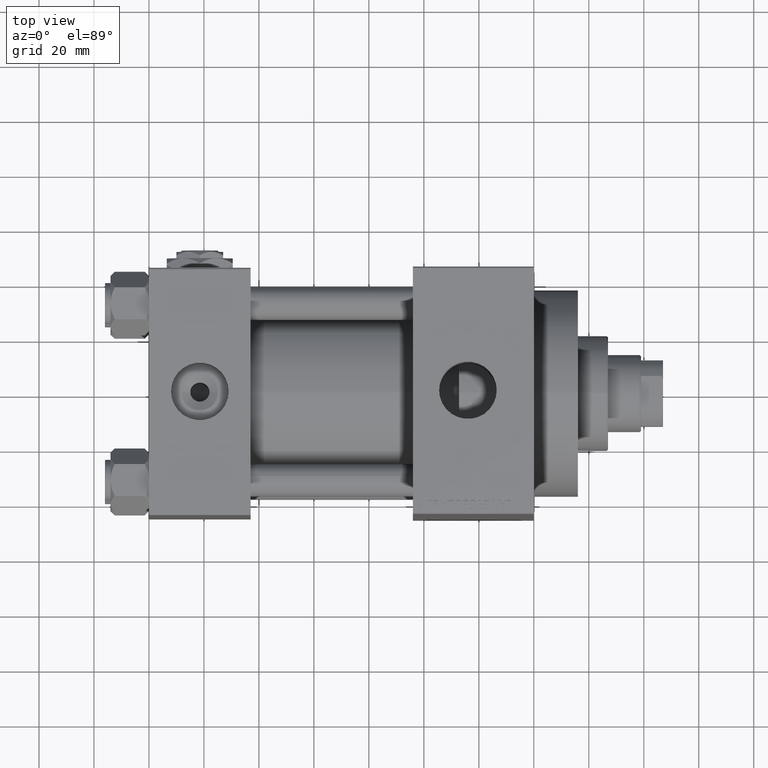
[diagram: clean part render]
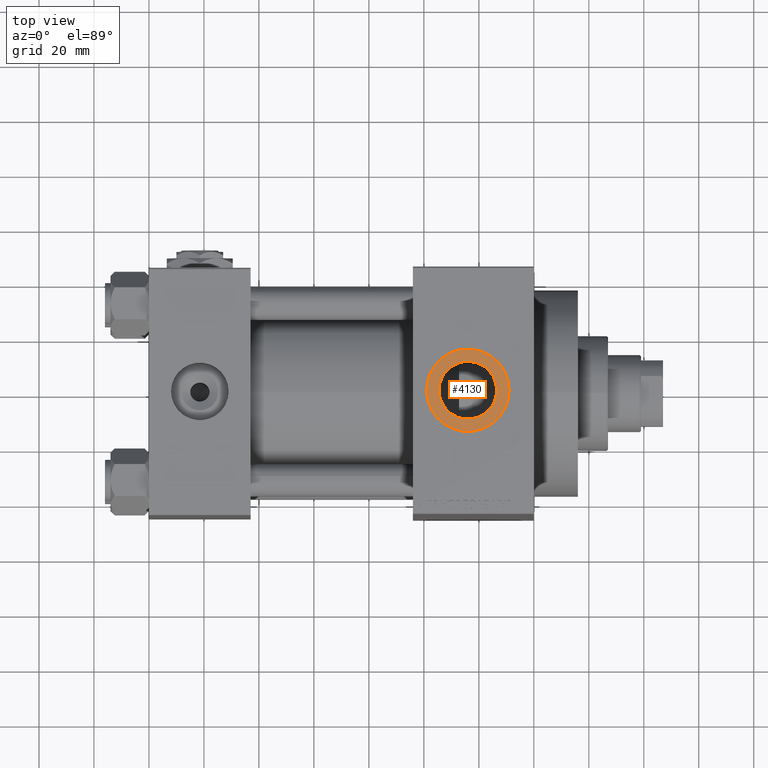
[diagram: same view with one face highlighted and labeled with its STEP entity id]
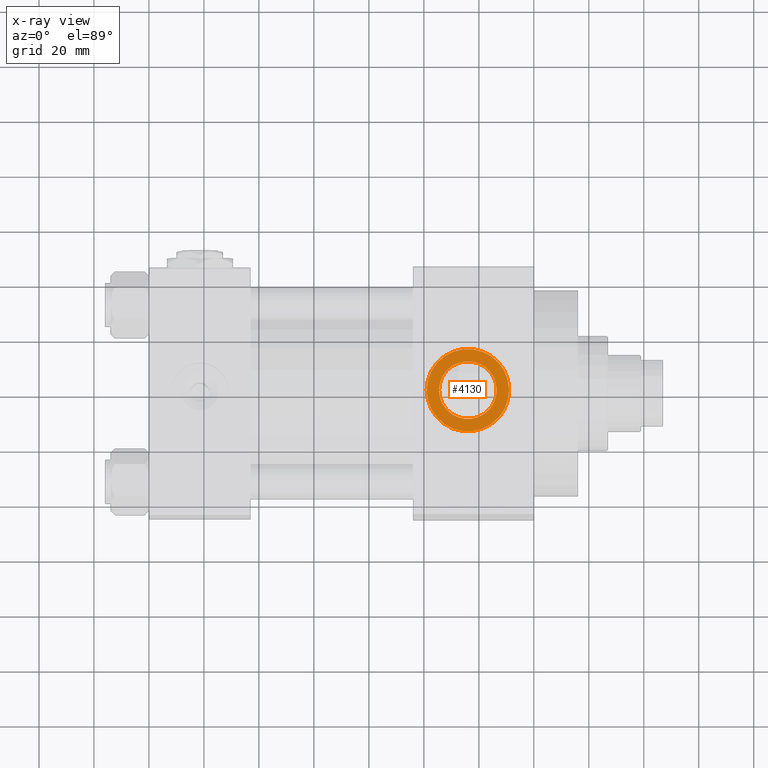
[diagram: x-ray of the same camera — body ghosted, the highlighted face saturated]
A machine part, top view. The second image highlights one B-rep face of the part: STEP entity #4130.
The next image is the same camera in x-ray: the body ghosted, the highlighted face saturated — about 0% of this face is hidden behind the body in this view.
In plain terms, the highlighted planar face has unit normal (0, 0, 1).
Its self-contained STEP definition (entity closure, byte-faithful):
#2776 = AXIS2_PLACEMENT_3D ( 'NONE', #47693, #6136, #10334 ) ;
#3206 = CARTESIAN_POINT ( 'NONE',  ( 116.0000000000000000, -1.094803260394251466E-14, 70.79999999999996874 ) ) ;
#4130 = ADVANCED_FACE ( 'NONE', ( #30452, #8173 ), #49000, .T. ) ;
#5685 = VERTEX_POINT ( 'NONE', #46159 ) ;
#6136 = DIRECTION ( 'NONE',  ( 0.000000000000000000, 0.000000000000000000, 1.000000000000000000 ) ) ;
#6540 = EDGE_LOOP ( 'NONE', ( #9689, #9981 ) ) ;
#6708 = DIRECTION ( 'NONE',  ( 1.000000000000000000, 0.000000000000000000, 0.000000000000000000 ) ) ;
#8173 = FACE_OUTER_BOUND ( 'NONE', #6540, .T. ) ;
#8675 = EDGE_CURVE ( 'NONE', #41296, #15831, #32984, .T. ) ;
#9689 = ORIENTED_EDGE ( 'NONE', *, *, #48939, .T. ) ;
#9981 = ORIENTED_EDGE ( 'NONE', *, *, #46489, .T. ) ;
#10334 = DIRECTION ( 'NONE',  ( 1.000000000000000000, 0.000000000000000000, 0.000000000000000000 ) ) ;
#13549 = VERTEX_POINT ( 'NONE', #33573 ) ;
#13628 = CARTESIAN_POINT ( 'NONE',  ( 126.4800000000000040, -9.664602758436087591E-15, 70.79999999999996874 ) ) ;
#14598 = AXIS2_PLACEMENT_3D ( 'NONE', #3206, #18318, #40590 ) ;
#15429 = AXIS2_PLACEMENT_3D ( 'NONE', #34900, #45536, #22781 ) ;
#15831 = VERTEX_POINT ( 'NONE', #13628 ) ;
#18318 = DIRECTION ( 'NONE',  ( -0.000000000000000000, -0.000000000000000000, -1.000000000000000000 ) ) ;
#18717 = CARTESIAN_POINT ( 'NONE',  ( 105.5199999999999960, -1.094803260394251466E-14, 70.79999999999996874 ) ) ;
#18967 = DIRECTION ( 'NONE',  ( 1.000000000000000000, 0.000000000000000000, 0.000000000000000000 ) ) ;
#22781 = DIRECTION ( 'NONE',  ( 1.000000000000000000, 0.000000000000000000, -0.000000000000000000 ) ) ;
#30452 = FACE_BOUND ( 'NONE', #47681, .T. ) ;
#31440 = ORIENTED_EDGE ( 'NONE', *, *, #8675, .T. ) ;
#31497 = ORIENTED_EDGE ( 'NONE', *, *, #44773, .T. ) ;
#32210 = AXIS2_PLACEMENT_3D ( 'NONE', #34062, #45700, #18967 ) ;
#32984 = CIRCLE ( 'NONE', #32210, 10.48000000000000398 ) ;
#33573 = CARTESIAN_POINT ( 'NONE',  ( 100.9999999999999858, -9.111062405221482702E-15, 70.79999999999996874 ) ) ;
#34062 = CARTESIAN_POINT ( 'NONE',  ( 116.0000000000000000, -1.094803260394251466E-14, 70.79999999999996874 ) ) ;
#34900 = CARTESIAN_POINT ( 'NONE',  ( 116.0000000000000000, -1.094803260394251466E-14, 70.79999999999996874 ) ) ;
#35934 = CIRCLE ( 'NONE', #14598, 10.48000000000000398 ) ;
#40131 = CARTESIAN_POINT ( 'NONE',  ( 116.0000000000000000, -1.094803260394251466E-14, 70.79999999999996874 ) ) ;
#40590 = DIRECTION ( 'NONE',  ( 1.000000000000000000, 0.000000000000000000, 0.000000000000000000 ) ) ;
#41296 = VERTEX_POINT ( 'NONE', #18717 ) ;
#42421 = AXIS2_PLACEMENT_3D ( 'NONE', #40131, #48039, #6708 ) ;
#44773 = EDGE_CURVE ( 'NONE', #15831, #41296, #35934, .T. ) ;
#45536 = DIRECTION ( 'NONE',  ( 0.000000000000000000, 0.000000000000000000, 1.000000000000000000 ) ) ;
#45700 = DIRECTION ( 'NONE',  ( -0.000000000000000000, -0.000000000000000000, -1.000000000000000000 ) ) ;
#46159 = CARTESIAN_POINT ( 'NONE',  ( 131.0000000000000000, -1.094803260394251466E-14, 70.79999999999996874 ) ) ;
#46255 = CIRCLE ( 'NONE', #42421, 15.00000000000000000 ) ;
#46489 = EDGE_CURVE ( 'NONE', #13549, #5685, #47827, .T. ) ;
#47681 = EDGE_LOOP ( 'NONE', ( #31440, #31497 ) ) ;
#47693 = CARTESIAN_POINT ( 'NONE',  ( 116.0000000000000000, -1.094803260394251466E-14, 70.79999999999996874 ) ) ;
#47827 = CIRCLE ( 'NONE', #2776, 15.00000000000000000 ) ;
#48039 = DIRECTION ( 'NONE',  ( 0.000000000000000000, 0.000000000000000000, 1.000000000000000000 ) ) ;
#48939 = EDGE_CURVE ( 'NONE', #5685, #13549, #46255, .T. ) ;
#49000 = PLANE ( 'NONE',  #15429 ) ;